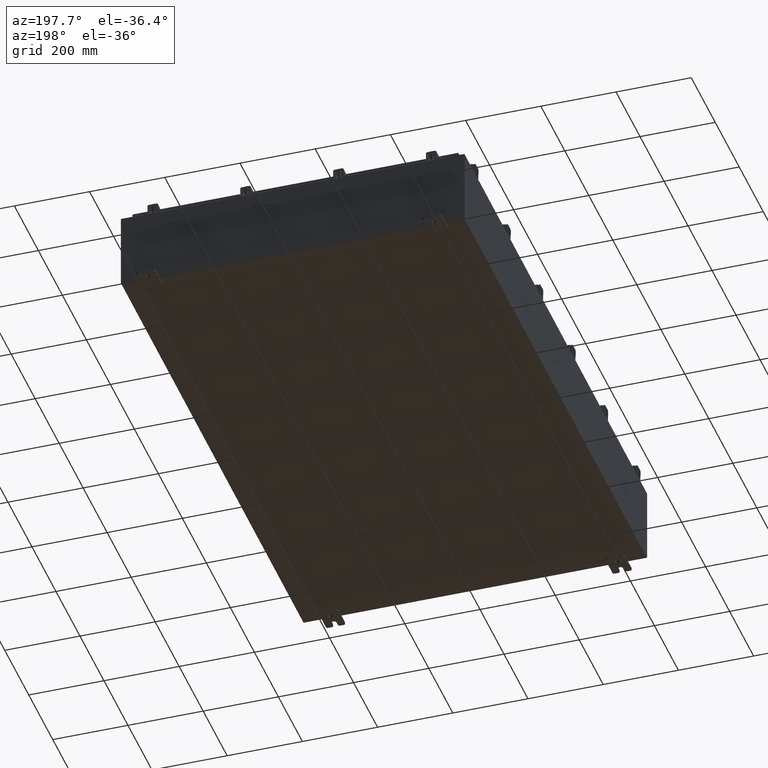
[diagram: clean part render]
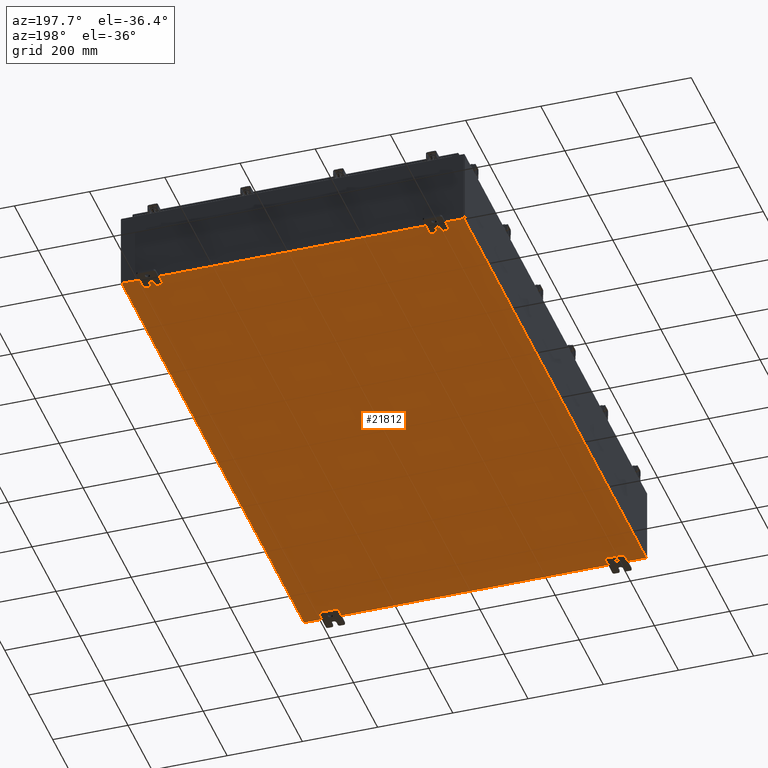
[diagram: same view with one face highlighted and labeled with its STEP entity id]
A machine part, auxiliary view. The second image highlights one B-rep face of the part: STEP entity #21812.
In plain terms, the highlighted planar face has unit normal (0, 0, -1).
Its self-contained STEP definition (entity closure, byte-faithful):
#131 = DIRECTION ( 'NONE',  ( 1.000000000000000000, 0.0000000000000000000, 0.0000000000000000000 ) ) ;
#1109 = VERTEX_POINT ( 'NONE', #25713 ) ;
#1302 = VERTEX_POINT ( 'NONE', #22060 ) ;
#1404 = DIRECTION ( 'NONE',  ( -0.0000000000000000000, -1.000000000000000000, -0.0000000000000000000 ) ) ;
#1884 = LINE ( 'NONE', #12731, #13236 ) ;
#2143 = FACE_OUTER_BOUND ( 'NONE', #10664, .T. ) ;
#2195 = ORIENTED_EDGE ( 'NONE', *, *, #20451, .F. ) ;
#3162 = ORIENTED_EDGE ( 'NONE', *, *, #18669, .F. ) ;
#3721 = CARTESIAN_POINT ( 'NONE',  ( 0.0000000000000000000, 0.0000000000000000000, -0.07470000000000000300 ) ) ;
#3805 = VECTOR ( 'NONE', #1404, 39.37007874015748100 ) ;
#5617 = EDGE_CURVE ( 'NONE', #24043, #11507, #9025, .T. ) ;
#6525 = CARTESIAN_POINT ( 'NONE',  ( -17.91230000000000200, -29.92530000000001100, -0.07469999999999994700 ) ) ;
#7007 = ORIENTED_EDGE ( 'NONE', *, *, #26914, .T. ) ;
#7941 = ORIENTED_EDGE ( 'NONE', *, *, #5617, .T. ) ;
#8615 = CARTESIAN_POINT ( 'NONE',  ( -18.00000000000000400, -29.92530000000001100, -0.07470000000000000300 ) ) ;
#9025 = LINE ( 'NONE', #20161, #15392 ) ;
#9267 = VECTOR ( 'NONE', #131, 39.37007874015748100 ) ;
#9528 = DIRECTION ( 'NONE',  ( -0.0000000000000000000, 1.000000000000000000, -0.0000000000000000000 ) ) ;
#9951 = LINE ( 'NONE', #8615, #9267 ) ;
#10178 = DIRECTION ( 'NONE',  ( -1.000000000000000000, 0.0000000000000000000, -0.0000000000000000000 ) ) ;
#10664 = EDGE_LOOP ( 'NONE', ( #3162, #7941, #2195, #7007 ) ) ;
#11507 = VERTEX_POINT ( 'NONE', #14376 ) ;
#12731 = CARTESIAN_POINT ( 'NONE',  ( -18.00000000000000400, 29.92529999999998900, -0.07470000000000000300 ) ) ;
#13236 = VECTOR ( 'NONE', #25498, 39.37007874015748100 ) ;
#13637 = AXIS2_PLACEMENT_3D ( 'NONE', #3721, #22966, #10178 ) ;
#14376 = CARTESIAN_POINT ( 'NONE',  ( -17.91230000000000200, 29.92529999999998600, -0.07470000000000000300 ) ) ;
#15392 = VECTOR ( 'NONE', #9528, 39.37007874015748100 ) ;
#18669 = EDGE_CURVE ( 'NONE', #24043, #1109, #9951, .T. ) ;
#20161 = CARTESIAN_POINT ( 'NONE',  ( -17.91230000000000200, -29.92530000000002100, -0.07469999999999994700 ) ) ;
#20451 = EDGE_CURVE ( 'NONE', #1302, #11507, #1884, .T. ) ;
#21812 = ADVANCED_FACE ( 'NONE', ( #2143 ), #22861, .T. ) ;
#22060 = CARTESIAN_POINT ( 'NONE',  ( 17.91229999999999800, 29.92529999999999300, -0.07469999999999994700 ) ) ;
#22861 = PLANE ( 'NONE',  #13637 ) ;
#22966 = DIRECTION ( 'NONE',  ( 0.0000000000000000000, 0.0000000000000000000, -1.000000000000000000 ) ) ;
#24043 = VERTEX_POINT ( 'NONE', #6525 ) ;
#25498 = DIRECTION ( 'NONE',  ( -1.000000000000000000, -0.0000000000000000000, -0.0000000000000000000 ) ) ;
#25713 = CARTESIAN_POINT ( 'NONE',  ( 17.91229999999999800, -29.92530000000001100, -0.07470000000000000300 ) ) ;
#25841 = LINE ( 'NONE', #26956, #3805 ) ;
#26914 = EDGE_CURVE ( 'NONE', #1302, #1109, #25841, .T. ) ;
#26956 = CARTESIAN_POINT ( 'NONE',  ( 17.91229999999999800, 29.92529999999999300, -0.07469999999999994700 ) ) ;